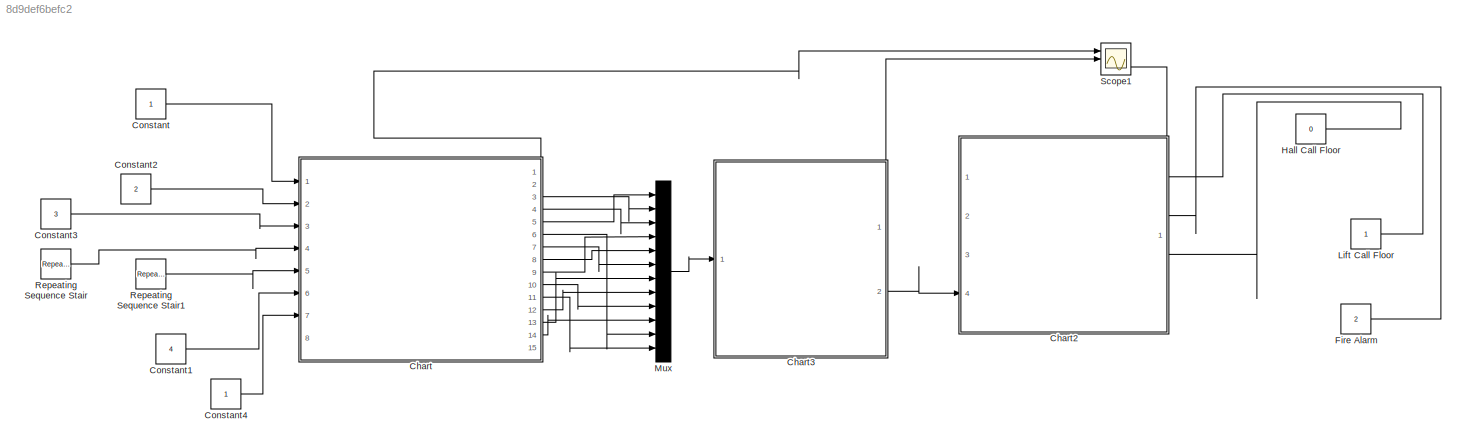
MODEL slx_8d9def6befc2
KIND model
CONFIG AbsTol = auto
CONFIG EnableMultiTasking = off
CONFIG FixedStep = auto
CONFIG MaxStep = auto
CONFIG MinStep = auto
CONFIG RelTol = 1e-3
CONFIG SampleTimeConstraint = Unconstrained
CONFIG Solver = VariableStepAuto
CONFIG SolverName = VariableStepAuto
CONFIG StartTime = 0.0
CONFIG StopTime = 10.0
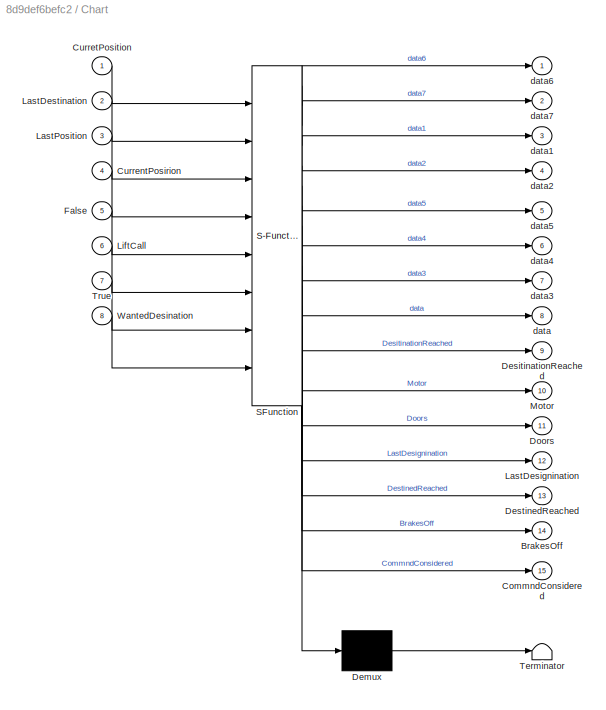
BLOCK [SubSystem] Chart
  ErrorFcn = Stateflow.Translate.translate
  PermitHierarchicalResolution = ExplicitOnly
  PortSchema = {"entries":[{"content":{"sides":[{"content":{"connectorIds":["In1","In2","In3","In4","In5","In6","In7"]},"type":"ConnectorPlacement.EquallySpacedRectSide","uuid":"aa2a2372-4a10-4770-bff8-2a5b90af5b20"},{"content":{"connectorIds":["Out3","Out4","Out5","Out6","Out7","Out8","Out9","Out10","Out11","Out12","Out13","Out14"],"side":"RIGHT"},"type":"ConnectorPlacement.EquallySpacedRectSide","uuid":"a7af34...<+530ch>
  Ports = [8, 15]
  RequestExecContextInheritance = off
  SFBlockType = Chart
  TreatAsAtomicUnit = on
BLOCK [Demux] Chart/ Demux 
  Outputs = 1
  Ports = [1, 1]
BLOCK [S-Function] Chart/ SFunction 
  EnableBusSupport = on
  FunctionName = sf_sfun
  PortCounts = [8 16]
  Ports = [8, 16]
  SFcnIsStateOwnerBlock = off
  SFunctionDeploymentMode = off
  Tag = Stateflow S-Function 3
BLOCK [Terminator] Chart/ Terminator 
BLOCK [Outport] Chart/BrakesOff
  Port = 14
BLOCK [Outport] Chart/CommndConsidered
  Port = 15
BLOCK [Inport] Chart/CurrentPosirion
  Port = 4
BLOCK [Inport] Chart/CurretPosition
BLOCK [Outport] Chart/DesitinationReached
  Port = 9
BLOCK [Outport] Chart/DestinedReached
  Port = 13
BLOCK [Outport] Chart/Doors
  Port = 11
BLOCK [Inport] Chart/False
  Port = 5
BLOCK [Outport] Chart/LastDesignination
  Port = 12
BLOCK [Inport] Chart/LastDestination
  Port = 2
BLOCK [Inport] Chart/LastPosition
  Port = 3
BLOCK [Inport] Chart/LiftCall
  Port = 6
BLOCK [Outport] Chart/Motor
  Port = 10
BLOCK [Inport] Chart/True
  Port = 7
BLOCK [Inport] Chart/WantedDesination
  Port = 8
BLOCK [Outport] Chart/data
  Port = 8
BLOCK [Outport] Chart/data1
  Port = 3
BLOCK [Outport] Chart/data2
  Port = 4
BLOCK [Outport] Chart/data3
  Port = 7
BLOCK [Outport] Chart/data4
  Port = 6
BLOCK [Outport] Chart/data5
  Port = 5
BLOCK [Outport] Chart/data6
BLOCK [Outport] Chart/data7
  Port = 2
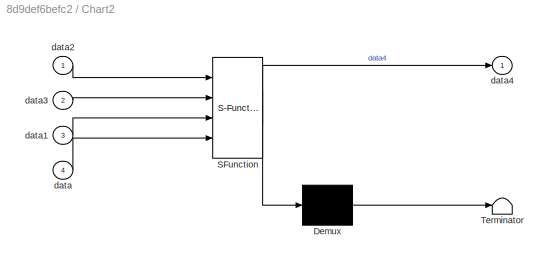
BLOCK [SubSystem] Chart2
  ErrorFcn = Stateflow.Translate.translate
  PermitHierarchicalResolution = ExplicitOnly
  PortSchema = {"entries":[{"content":{"sides":[{"content":{"connectorIds":["In4"]},"type":"ConnectorPlacement.EquallySpacedRectSide","uuid":"9d12e941-f93e-4b81-ba54-9a45c14cbce8"},{"content":{"connectorIds":["In1","In2","In3"],"side":"RIGHT"},"type":"ConnectorPlacement.EquallySpacedRectSide","uuid":"45bb56a4-cc23-4366-923d-37100c39de85"},{"content":{"connectorIds":["Out1"],"side":"TOP"},"type":"ConnectorPlaceme...<+259ch>
  Ports = [4, 1]
  RequestExecContextInheritance = off
  SFBlockType = Chart
  TreatAsAtomicUnit = on
BLOCK [Demux] Chart2/ Demux 
  Outputs = 1
  Ports = [1, 1]
BLOCK [S-Function] Chart2/ SFunction 
  EnableBusSupport = on
  FunctionName = sf_sfun
  PortCounts = [4 2]
  Ports = [4, 2]
  SFcnIsStateOwnerBlock = off
  SFunctionDeploymentMode = off
  Tag = Stateflow S-Function 2
BLOCK [Terminator] Chart2/ Terminator 
BLOCK [Inport] Chart2/data
  Port = 4
BLOCK [Inport] Chart2/data1
  Port = 3
BLOCK [Inport] Chart2/data2
BLOCK [Inport] Chart2/data3
  Port = 2
BLOCK [Outport] Chart2/data4
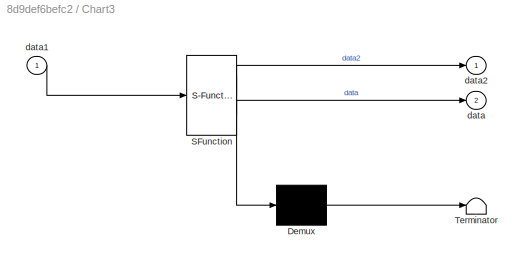
BLOCK [SubSystem] Chart3
  ErrorFcn = Stateflow.Translate.translate
  PermitHierarchicalResolution = ExplicitOnly
  PortSchema = {"entries":[{"content":{"sides":[{"content":{"connectorIds":["In1"]},"type":"ConnectorPlacement.EquallySpacedRectSide","uuid":"d9b4708a-5ec2-415c-9bcb-1c90d346baa5"},{"content":{"connectorIds":["Out2"],"side":"RIGHT"},"type":"ConnectorPlacement.EquallySpacedRectSide","uuid":"f3e2e2d4-e6bf-4a2d-9fb3-4788f59b00ae"},{"content":{"connectorIds":["Out1"],"side":"TOP"},"type":"ConnectorPlacement.EquallyS...<+248ch>
  Ports = [1, 2]
  RequestExecContextInheritance = off
  SFBlockType = Chart
  TreatAsAtomicUnit = on
BLOCK [Demux] Chart3/ Demux 
  Outputs = 1
  Ports = [1, 1]
BLOCK [S-Function] Chart3/ SFunction 
  EnableBusSupport = on
  FunctionName = sf_sfun
  PortCounts = [1 3]
  Ports = [1, 3]
  SFcnIsStateOwnerBlock = off
  SFunctionDeploymentMode = off
  Tag = Stateflow S-Function 4
BLOCK [Terminator] Chart3/ Terminator 
BLOCK [Outport] Chart3/data
  Port = 2
BLOCK [Inport] Chart3/data1
BLOCK [Outport] Chart3/data2
BLOCK [Constant] Constant
BLOCK [Constant] Constant1
  Value = 4
BLOCK [Constant] Constant2
  Value = 2
BLOCK [Constant] Constant3
  Value = 3
BLOCK [Constant] Constant4
BLOCK [Constant] Fire Alarm
  Value = 2
BLOCK [Constant] Hall Call Floor
  Value = 0
BLOCK [Constant] Lift Call Floor
BLOCK [Mux] Mux
  DisplayOption = bar
  Inputs = 12
  Ports = [12, 1]
BLOCK [Reference] Repeating Sequence Stair  REF=simulink/Sources/Repeating
Sequence
Stair
  Ports = [0, 1]
  SourceBlock = simulink/Sources/Repeating\nSequence\nStair
  SourceProductBaseCode = SL
  SourceType = Repeating Sequence Stair
BLOCK [Reference] Repeating Sequence Stair1  REF=simulink/Sources/Repeating
Sequence
Stair
  Ports = [0, 1]
  SourceBlock = simulink/Sources/Repeating\nSequence\nStair
  SourceProductBaseCode = SL
  SourceType = Repeating Sequence Stair
BLOCK [Scope] Scope1
  Floating = off
  NumInputPorts = 3
  Ports = [3]
  ScopeSpecificationString = Simulink.scopes.TimeScopeBlockCfg('CurrentConfiguration', extmgr.ConfigurationSet(extmgr.Configuration('Core','General UI',true),extmgr.Configuration('Core','Source UI',true),extmgr.Configuration('Sources','WiredSimulink',true,'DataLoggingVariableName','ScopeData1'),extmgr.Configuration('Visuals','Time Domain',true),extmgr.Configuration('Tools','Plot Navigation',true),extmgr.Configuration('Tools',...<+58ch>
LINE Chart2:1 -> Scope1:3
LINE Chart3:1 -> Scope1:2
LINE Chart3:2 -> Chart2:4
LINE Chart:10 -> Mux:9
LINE Chart:11 -> Mux:12
LINE Chart:12 -> Mux:8
LINE Chart:13 -> Mux:7
LINE Chart:14 -> Mux:10
LINE Chart:15 -> Chart:8
LINE Chart:2 -> Scope1:1
LINE Chart:3 -> Mux:2
LINE Chart:4 -> Mux:3
LINE Chart:5 -> Mux:1
LINE Chart:6 -> Mux:11
LINE Chart:7 -> Mux:6
LINE Chart:8 -> Mux:5
LINE Chart:9 -> Mux:4
LINE Constant1:1 -> Chart:6
LINE Constant2:1 -> Chart:2
LINE Constant3:1 -> Chart:3
LINE Constant4:1 -> Chart:7
LINE Constant:1 -> Chart:1
LINE Fire Alarm:1 -> Chart2:2
LINE Hall Call Floor:1 -> Chart2:3
LINE Lift Call Floor:1 -> Chart2:1
LINE Mux:1 -> Chart3:1
LINE Repeating Sequence Stair1:1 -> Chart:5
LINE Repeating Sequence Stair:1 -> Chart:4
CHART Chart states=15 transitions=18
  STATE_LABEL 'Stopped'
  STATE_LABEL 'Stopped_and_Waiting'
  STATE_LABEL 'Initializing\nentry:Motor=false;BrakesOff=false;Doors=false;\nDestinedReached=False;CommndConsidered=false;'
  STATE_LABEL 'FixingDesignation\nLastDesignination=WantedDesination;'
  STATE_LABEL 'SettingDown\nentry:Up=false;'
  STATE_LABEL 'SettingUp\nentry:Up=true'
  STATE_LABEL 'CommandAccepted\nCommandConsidered=true;'
  STATE_LABEL '[LiftCall&&~CommandConsidered]'
  STATE_LABEL '[CurretPosition<LastPosition]'
  STATE_LABEL 'Stopping_at_destination'
  STATE_LABEL 'StoppingLift\nentry:Motor=False;BrakesOff=False;'
  STATE_LABEL 'ErrorState\nentry:Doors=false;'
  STATE_LABEL 'OpeningDoors\nentry:DesitinationReached=True;Doors=true;'
  STATE_LABEL '[CurrentPosition~=LastDestination]'
  STATE_LABEL '[CurrentPosition==LastDestination]'
  STATE_LABEL 'Stopped_and_Waiting'
  STATE_LABEL 'Initializing\nentry:Motor=false;BrakesOff=false;Doors=false;\nDestinedReached=False;CommndConsidered=false;'
  STATE_LABEL 'FixingDesignation\nLastDesignination=WantedDesination;'
  STATE_LABEL 'SettingDown\nentry:Up=false;'
  STATE_LABEL 'SettingUp\nentry:Up=true'
  STATE_LABEL 'CommandAccepted\nCommandConsidered=true;'
  STATE_LABEL '[LiftCall&&~CommandConsidered]'
  STATE_LABEL '[CurretPosition<LastPosition]'
  STATE_LABEL 'Initializing\nentry:Motor=false;BrakesOff=false;Doors=false;\nDestinedReached=False;CommndConsidered=false;'
  STATE_LABEL 'FixingDesignation\nLastDesignination=WantedDesination;'
  STATE_LABEL 'SettingDown\nentry:Up=false;'
  STATE_LABEL 'SettingUp\nentry:Up=true'
  STATE_LABEL 'CommandAccepted\nCommandConsidered=true;'
  STATE_LABEL 'Stopping_at_destination'
  STATE_LABEL 'StoppingLift\nentry:Motor=False;BrakesOff=False;'
  STATE_LABEL 'ErrorState\nentry:Doors=false;'
  STATE_LABEL 'OpeningDoors\nentry:DesitinationReached=True;Doors=true;'
  STATE_LABEL '[CurrentPosition~=LastDestination]'
  STATE_LABEL 'StoppingLift\nentry:Motor=False;BrakesOff=False;'
  STATE_LABEL 'ErrorState\nentry:Doors=false;'
  STATE_LABEL 'OpeningDoors\nentry:DesitinationReached=True;Doors=true;'
  STATE_LABEL 'Moving'
  STATE_LABEL 'StartingMotor\nentry:Motor=true;BrakesOff=true;Doors=false;'
  STATE_LABEL 'MovingUp\nentry:CurrentPosition=CurrentPosition + 1'
  STATE_LABEL 'MovingDown\nentry:CurrentPosition = CurrentPosition-1;'
CHART Chart3 states=10 transitions=12
  STATE_LABEL 'Elevator'
  STATE_LABEL 'Indside_Elevator_A'
  STATE_LABEL 'Off\nentry:\nLift=0;'
  STATE_LABEL 'noSwitch'
  STATE_LABEL 'carSwitch'
  STATE_LABEL '[after(3,tick)]'
  STATE_LABEL 'carOn\nentry:\nlift=1;'
  STATE_LABEL 'liftoff\nentry:\nlift=-1;'
  STATE_LABEL '[car2 > (car3-dT)]'
  STATE_LABEL '[car2< (car3+dT)]'
  STATE_LABEL '[car < (car-dT)]'
  STATE_LABEL '[car > (car+dT)]'
  STATE_LABEL 'ElevatorOff\nentry:\nLiftEntry=0;'
  STATE_LABEL 'noSwitch'
  STATE_LABEL 'carSwitch'
  STATE_LABEL '[after(3,tick)]'
  STATE_LABEL '[car == 0]'
  STATE_LABEL '[car == 1]'
  STATE_LABEL 'Indside_Elevator_A'
  STATE_LABEL 'Off\nentry:\nLift=0;'
  STATE_LABEL 'noSwitch'
  STATE_LABEL 'carSwitch'
  STATE_LABEL '[after(3,tick)]'
  STATE_LABEL 'carOn\nentry:\nlift=1;'
  STATE_LABEL 'liftoff\nentry:\nlift=-1;'
  STATE_LABEL '[car2 > (car3-dT)]'
  STATE_LABEL '[car2< (car3+dT)]'
  STATE_LABEL '[car < (car-dT)]'
  STATE_LABEL '[car > (car+dT)]'
  STATE_LABEL 'Off\nentry:\nLift=0;'
  STATE_LABEL 'noSwitch'
  STATE_LABEL 'carSwitch'
  STATE_LABEL '[after(3,tick)]'
  STATE_LABEL 'noSwitch'
  STATE_LABEL 'carSwitch'
  STATE_LABEL 'carOn\nentry:\nlift=1;'
  STATE_LABEL 'liftoff\nentry:\nlift=-1;'
  STATE_LABEL 'ElevatorOff\nentry:\nLiftEntry=0;'
  STATE_LABEL 'noSwitch'
  STATE_LABEL 'carSwitch'
CHART Chart2 states=10 transitions=16
  STATE_LABEL 'LiftControl1\ndu: updateLiftcontrol;'
  STATE_LABEL 'Normal'
  STATE_LABEL 'Upshift\nen: count = 0;\ndu: count = count+1;'
  STATE_LABEL 'Downshift\nen: count = 0;\ndu: count = count+1;'
  STATE_LABEL '[v>v_liftup]\n/{Lift.UP;}'
  STATE_LABEL '[v<v_liftdown]\n/{Lift.DOWN;}'
  STATE_LABEL '[count > 3]'
  STATE_LABEL '[count > 3]'
  STATE_LABEL 'Normal'
  STATE_LABEL 'Upshift\nen: count = 0;\ndu: count = count+1;'
  STATE_LABEL 'Downshift\nen: count = 0;\ndu: count = count+1;'
  STATE_LABEL 'LiftControl'
  STATE_LABEL 'Floor_2\nen: floor= 2;'
  STATE_LABEL 'Floor_4\nen: floor = 4;'
  STATE_LABEL 'Floor_5\nen: floor = 4;'
  STATE_LABEL 'Floor_3\nen: floor = 3;'
  STATE_LABEL 'Floor_1\nen: floor = 1;'
  STATE_LABEL 'UP'
  STATE_LABEL 'UP'
  STATE_LABEL 'UP'
  STATE_LABEL 'DOWN'
  STATE_LABEL 'DOWN'
  STATE_LABEL 'DOWN'
  STATE_LABEL 'Floor_2\nen: floor= 2;'
  STATE_LABEL 'Floor_4\nen: floor = 4;'
  STATE_LABEL 'Floor_5\nen: floor = 4;'
  STATE_LABEL 'Floor_3\nen: floor = 3;'
  STATE_LABEL 'Floor_1\nen: floor = 1;'
CHART  states=0 transitions=0
CHART  states=0 transitions=0
CHART  states=0 transitions=0
